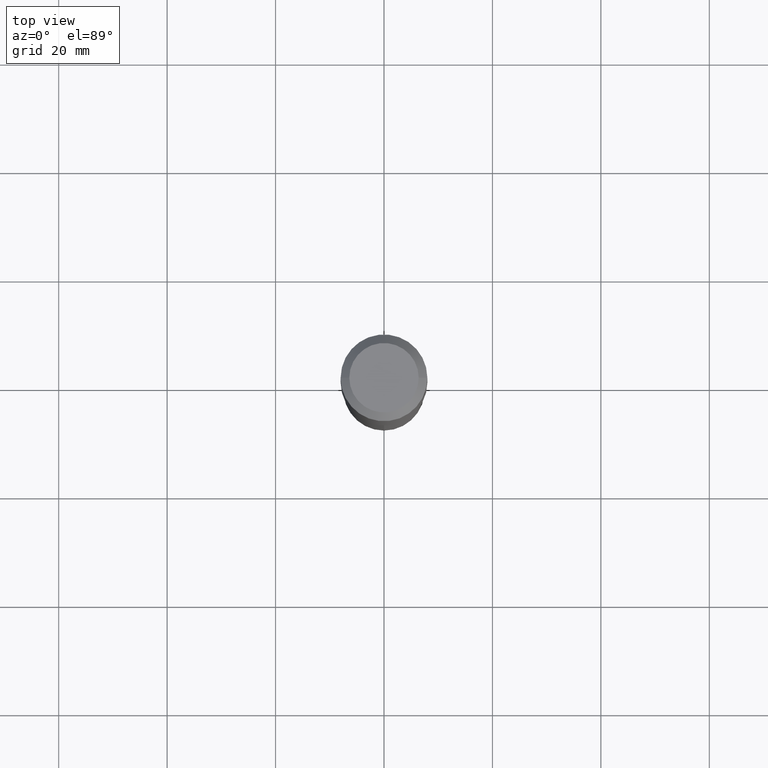
[diagram: clean part render]
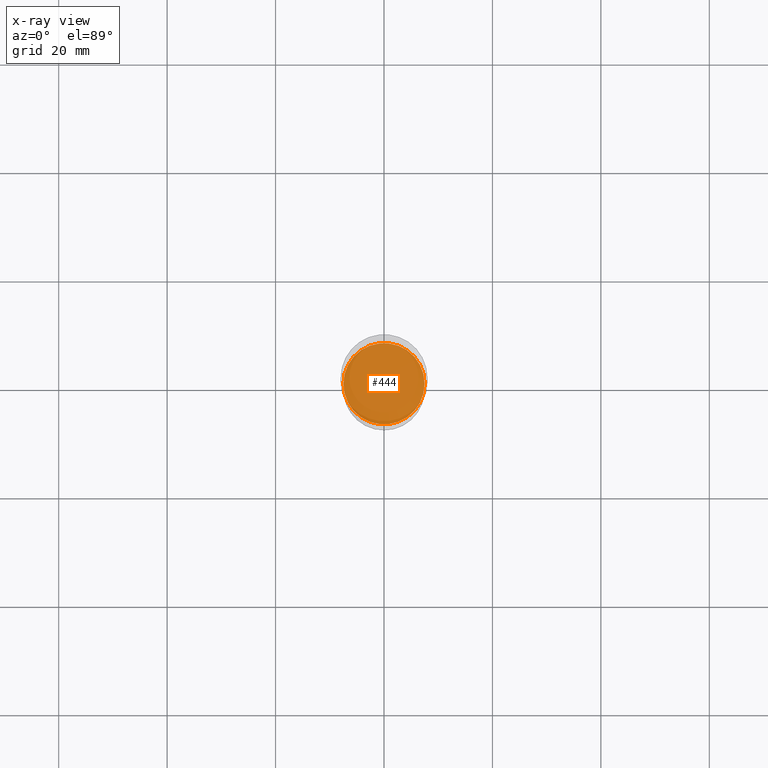
[diagram: x-ray — body ghosted, one internal face saturated and labeled with its STEP entity id]
A machine part, top view, then the same camera in x-ray: the body is ghosted and one INTERNAL B-rep face — a face not visible from any outside direction — is saturated and labeled: STEP entity #444.
In plain terms, the highlighted planar face has unit normal (-0, 0, 1).
Its self-contained STEP definition (entity closure, byte-faithful):
#35 = ORIENTED_EDGE ( 'NONE', *, *, #310, .F. ) ;
#67 = ORIENTED_EDGE ( 'NONE', *, *, #235, .F. ) ;
#73 = DIRECTION ( 'NONE',  ( 1.000000000000000000, -6.982962677686265922E-15, 0.000000000000000000 ) ) ;
#106 = CARTESIAN_POINT ( 'NONE',  ( 0.2948000000000000065, -1.099362729161540808E-14, -2.559100000000000374 ) ) ;
#109 = CARTESIAN_POINT ( 'NONE',  ( 6.258199221908383945E-29, -8.935049894233496920E-15, -2.559100000000000374 ) ) ;
#133 = CIRCLE ( 'NONE', #368, 0.2948000000000000065 ) ;
#141 = DIRECTION ( 'NONE',  ( -2.445468806185136597E-29, 3.491481338843145583E-15, 1.000000000000000000 ) ) ;
#218 = DIRECTION ( 'NONE',  ( -2.445468806185136597E-29, 3.491481338843145583E-15, 1.000000000000000000 ) ) ;
#223 = CARTESIAN_POINT ( 'NONE',  ( -0.2948000000000000065, -6.837720682038608352E-15, -2.559100000000000374 ) ) ;
#231 = EDGE_LOOP ( 'NONE', ( #35, #67 ) ) ;
#235 = EDGE_CURVE ( 'NONE', #380, #259, #133, .T. ) ;
#259 = VERTEX_POINT ( 'NONE', #106 ) ;
#263 = FACE_OUTER_BOUND ( 'NONE', #231, .T. ) ;
#299 = AXIS2_PLACEMENT_3D ( 'NONE', #449, #456, #447 ) ;
#301 = PLANE ( 'NONE',  #299 ) ;
#310 = EDGE_CURVE ( 'NONE', #259, #380, #386, .T. ) ;
#368 = AXIS2_PLACEMENT_3D ( 'NONE', #109, #141, #403 ) ;
#369 = CARTESIAN_POINT ( 'NONE',  ( 6.258199221908383945E-29, -8.935049894233496920E-15, -2.559100000000000374 ) ) ;
#380 = VERTEX_POINT ( 'NONE', #223 ) ;
#386 = CIRCLE ( 'NONE', #424, 0.2948000000000000065 ) ;
#403 = DIRECTION ( 'NONE',  ( 1.000000000000000000, -6.982962677686265922E-15, 0.000000000000000000 ) ) ;
#424 = AXIS2_PLACEMENT_3D ( 'NONE', #369, #218, #73 ) ;
#444 = ADVANCED_FACE ( 'NONE', ( #263 ), #301, .F. ) ;
#447 = DIRECTION ( 'NONE',  ( 1.000000000000000000, -6.982962677686265922E-15, 4.876176775795935793E-29 ) ) ;
#449 = CARTESIAN_POINT ( 'NONE',  ( 2.946232040517370813E-29, -1.367797540345073939E-14, -2.559100000000000374 ) ) ;
#456 = DIRECTION ( 'NONE',  ( -2.438088387897960049E-29, 3.491481338843145188E-15, 1.000000000000000000 ) ) ;